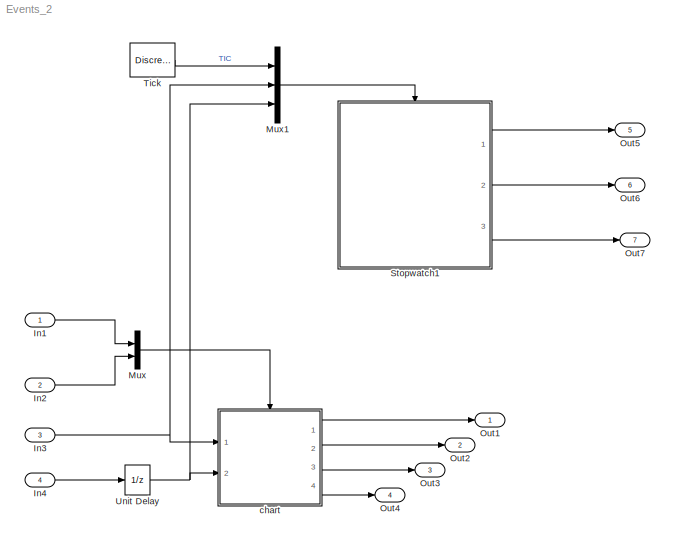
MODEL Events_2
KIND model
CONFIG AbsTol = auto
CONFIG FixedStep = auto
CONFIG MaxStep = auto
CONFIG MinStep = auto
CONFIG RelTol = 1e-3
CONFIG Solver = FixedStepDiscrete
CONFIG SolverMode = Auto
CONFIG StartTime = 0.0
CONFIG StopTime = 10.0
BLOCK [Inport] In1
  SampleTime = 1
BLOCK [Inport] In2
  Port = 2
  SampleTime = 1
BLOCK [Inport] In3
  Port = 3
  SampleTime = 1
BLOCK [Inport] In4
  Port = 4
  SampleTime = 1
BLOCK [Mux] Mux
  DisplayOption = bar
  Inputs = 2
  Ports = [2, 1]
BLOCK [Mux] Mux1
  DisplayOption = bar
  Inputs = 3
  Ports = [3, 1]
BLOCK [Outport] Out1
BLOCK [Outport] Out2
  Port = 2
BLOCK [Outport] Out3
  Port = 3
BLOCK [Outport] Out4
  Port = 4
BLOCK [Outport] Out5
  Port = 5
BLOCK [Outport] Out6
  Port = 6
BLOCK [Outport] Out7
  Port = 7
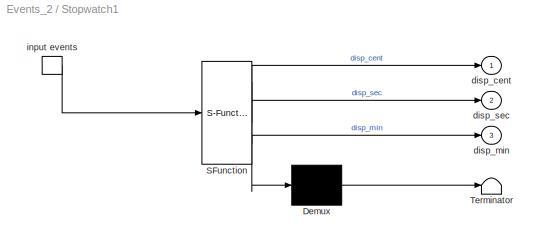
BLOCK [SubSystem] Stopwatch1
  MaskDescription = Stateflow diagram
  MaskDisplay = plot(sf('Private','sfblk','xIcon'),sf('Private','sfblk','yIcon'));text(0.5,0,sf('Private', 'sfblk', 'tIcon'),'HorizontalAl','Center','VerticalAl','Bottom');
  MaskIconFrame = off
  MaskIconOpaque = off
  MaskIconRotate = none
  MaskIconUnits = autoscale
  MaskSelfModifiable = on
  MaskType = Stateflow
  Ports = [0, 3, 0, 1]
  TreatAsAtomicUnit = off
BLOCK [Demux] Stopwatch1/ Demux 
  Outputs = 1
  Ports = [1, 1]
BLOCK [S-Function] Stopwatch1/ SFunction 
  FunctionName = sf_sfun
  PortCounts = [1 4]
  Ports = [1, 4]
  Tag = Stateflow S-Function Events_2 1
BLOCK [Terminator] Stopwatch1/ Terminator 
BLOCK [TriggerPort] Stopwatch1/ input events 
  Ports = [0, 1]
  ShowOutputPort = on
  TriggerType = either
BLOCK [Outport] Stopwatch1/disp_cent
BLOCK [Outport] Stopwatch1/disp_min
  Port = 3
BLOCK [Outport] Stopwatch1/disp_sec
  Port = 2
BLOCK [DiscretePulseGenerator] Tick
  VectorParams1D = off
BLOCK [UnitDelay] Unit Delay
  SampleTime = -1
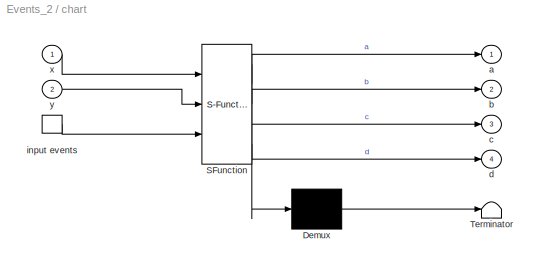
BLOCK [SubSystem] chart
  MaskDescription = Stateflow diagram
  MaskDisplay = plot(sf('Private','sfblk','xIcon'),sf('Private','sfblk','yIcon'));text(0.5,0,sf('Private', 'sfblk', 'tIcon'),'HorizontalAl','Center','VerticalAl','Bottom');
  MaskIconFrame = off
  MaskIconOpaque = off
  MaskIconRotate = none
  MaskIconUnits = autoscale
  MaskSelfModifiable = on
  MaskType = Stateflow
  Ports = [2, 4, 0, 1]
  TreatAsAtomicUnit = off
BLOCK [Demux] chart/ Demux 
  Outputs = 1
  Ports = [1, 1]
BLOCK [S-Function] chart/ SFunction 
  FunctionName = sf_sfun
  PortCounts = [3 5]
  Ports = [3, 5]
  Tag = Stateflow S-Function Events_2 2
BLOCK [Terminator] chart/ Terminator 
BLOCK [TriggerPort] chart/ input events 
  Ports = [0, 1]
  ShowOutputPort = on
  TriggerType = either
BLOCK [Outport] chart/a
BLOCK [Outport] chart/b
  Port = 2
BLOCK [Outport] chart/c
  Port = 3
BLOCK [Outport] chart/d
  Port = 4
BLOCK [Inport] chart/x
  PortDimensions = 1
BLOCK [Inport] chart/y
  Port = 2
  PortDimensions = 1
LINE In1:1 -> Mux:1
LINE In2:1 -> Mux:2
NET In3:1 -> Mux1:2, chart:1
LINE In4:1 -> Unit Delay:1
LINE Mux1:1 -> Stopwatch1:trigger
LINE Mux:1 -> chart:trigger
LINE Stopwatch1/ Demux :1 -> Stopwatch1/ Terminator :1
LINE Stopwatch1/ SFunction :1 -> Stopwatch1/ Demux :1
LINE Stopwatch1/ SFunction :2 -> Stopwatch1/disp_cent:1
LINE Stopwatch1/ SFunction :3 -> Stopwatch1/disp_sec:1
LINE Stopwatch1/ SFunction :4 -> Stopwatch1/disp_min:1
LINE Stopwatch1/ input events :1 -> Stopwatch1/ SFunction :1
LINE Stopwatch1:1 -> Out5:1
LINE Stopwatch1:2 -> Out6:1
LINE Stopwatch1:3 -> Out7:1
LINE Tick:1 -> Mux1:1
NET Unit Delay:1 -> Mux1:3, chart:2
LINE chart/ Demux :1 -> chart/ Terminator :1
LINE chart/ SFunction :1 -> chart/ Demux :1
LINE chart/ SFunction :2 -> chart/a:1
LINE chart/ SFunction :3 -> chart/b:1
LINE chart/ SFunction :4 -> chart/c:1
LINE chart/ SFunction :5 -> chart/d:1
LINE chart/ input events :1 -> chart/ SFunction :3
LINE chart/x:1 -> chart/ SFunction :1
LINE chart/y:1 -> chart/ SFunction :2
LINE chart:1 -> Out1:1
LINE chart:2 -> Out2:1
LINE chart:3 -> Out3:1
LINE chart:4 -> Out4:1
note: NET lines group one-source signal fan-out (src -> all destinations, sorted); 1:1 wires keep LINE
CHART Stopwatch1 states=10 transitions=17
  STATE_LABEL 'A'
  STATE_LABEL 'Tick'
  STATE_LABEL 'Stopwatch'
  STATE_LABEL 'Stop'
  STATE_LABEL 'Run'
  STATE_LABEL 'Reset/\\nen: runlap=1;\\non LAP:\\ncent=0; sec=0; min=0;\\ndisp_cent=0; disp_sec=0;\\ndisp_min=0;'
  STATE_LABEL 'Lap_stop/\\nen: runlap=2;'
  STATE_LABEL 'Running/\\nen: runlap=1;\\ndu:\\ndisp_cent=cent;\\ndisp_sec=sec;\\ndisp_min=min;'
  STATE_LABEL 'Lap/\\nen: runlap=2;'
  STATE_LABEL 'Watch'
CHART chart states=12 transitions=12
  STATE_LABEL 'Cb/\\nen:c=x+6'
  STATE_LABEL 'B'
  STATE_LABEL 'Ba/\\nen:b=x+3'
  STATE_LABEL 'Bb/\\nen:b=x+4+y'
  STATE_LABEL 'A'
  STATE_LABEL 'Aa/\\nen:a=x+1'
  STATE_LABEL 'Ab/\\nen:a=x+2'
  STATE_LABEL 'Ca/\\nen:c=x+5'
  STATE_LABEL 'D'
  STATE_LABEL 'Da/\\nen:d=x+7'
  STATE_LABEL 'Db/\\nen:d=x+8'
  STATE_LABEL 'C'
